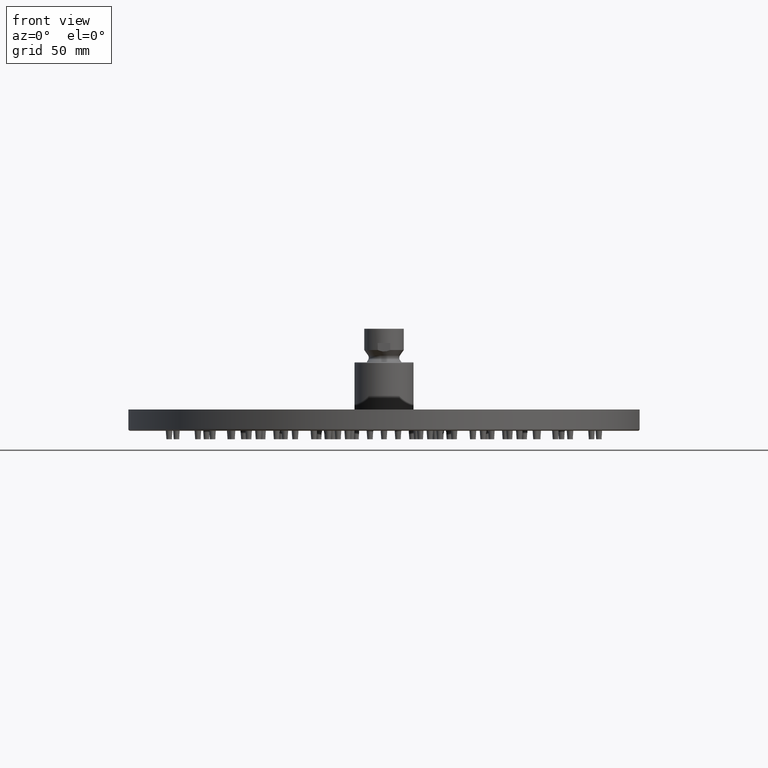
[diagram: clean part render]
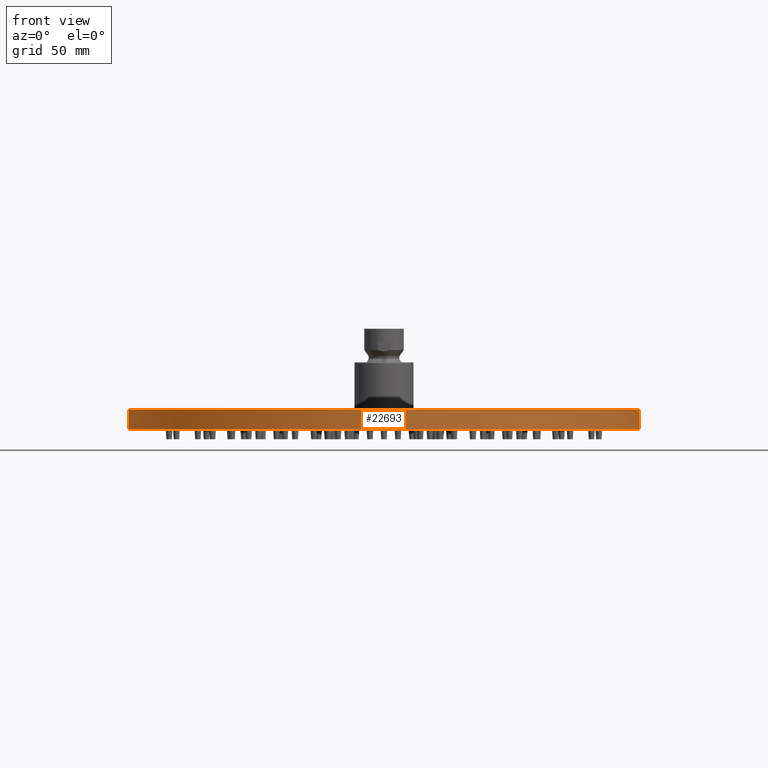
[diagram: same view with one face highlighted and labeled with its STEP entity id]
A machine part, front view. The second image highlights one B-rep face of the part: STEP entity #22693.
In plain terms, the highlighted cylindrical surface (bore or boss wall) has radius 150.5 mm, axis along (-0, 0, -1).
Its self-contained STEP definition (entity closure, byte-faithful):
#20577=CARTESIAN_POINT('',(-150.5,1.84303256250268E-014,0.5));
#20578=VERTEX_POINT('Vertex1978',#20577);
#20579=CARTESIAN_POINT('',(150.5,-3.68606512500536E-014,0.5));
#20580=VERTEX_POINT('Vertex841',#20579);
#20581=CARTESIAN_POINT('',(-1.06581410364015E-014,2.22044604925031E-014,0.5));
#20582=DIRECTION('',(0.,0.,-1.));
#20583=DIRECTION('',(-1.,-2.50773080895439E-017,0.));
#20584=AXIS2_PLACEMENT_3D('',#20581,#20582,#20583);
#20585=CIRCLE('',#20584,150.5);
#20586=EDGE_CURVE('Edge3240',#20578,#20580,#20585,.T.);
#20588=CARTESIAN_POINT('',(1.59872115546023E-014,-3.46389583683049E-014,0.5));
#20589=DIRECTION('',(-0.,0.,-1.));
#20590=DIRECTION('',(1.,-1.47620789484962E-017,0.));
#20591=AXIS2_PLACEMENT_3D('',#20588,#20589,#20590);
#20592=CIRCLE('',#20591,150.5);
#20593=EDGE_CURVE('Edge3239',#20580,#20578,#20592,.T.);
#22673=ORIENTED_EDGE('Edgeuse6480',*,*,#20586,.F.);
#22674=ORIENTED_EDGE('Edgeuse6478',*,*,#20593,.F.);
#22675=EDGE_LOOP('',(#22673,#22674));
#22676=FACE_BOUND('',#22675,.T.);
#22677=CARTESIAN_POINT('',(150.5,0.,12.));
#22678=VERTEX_POINT('Vertex944',#22677);
#22679=CARTESIAN_POINT('',(0.,9.76996261670138E-015,12.));
#22680=DIRECTION('',(-0.,-0.,-1.));
#22681=DIRECTION('',(1.,-6.49166951275839E-017,0.));
#22682=AXIS2_PLACEMENT_3D('',#22679,#22680,#22681);
#22683=CIRCLE('',#22682,150.5);
#22684=EDGE_CURVE('Edge944',#22678,#22678,#22683,.T.);
#22685=ORIENTED_EDGE('Edgeuse1682',*,*,#22684,.T.);
#22686=EDGE_LOOP('',(#22685));
#22687=FACE_BOUND('',#22686,.T.);
#22688=CARTESIAN_POINT('',(1.46549439250521E-014,1.06581410364015E-014,12.575)
);
#22689=DIRECTION('',(-1.18030354777425E-017,1.18030354777425E-017,-1.));
#22690=DIRECTION('',(1.,-7.08182128664552E-017,-1.18030354777425E-017));
#22691=AXIS2_PLACEMENT_3D('',#22688,#22689,#22690);
#22692=CYLINDRICAL_SURFACE('',#22691,150.5);
#22693=ADVANCED_FACE('Face635',(#22676,#22687),#22692,.T.);